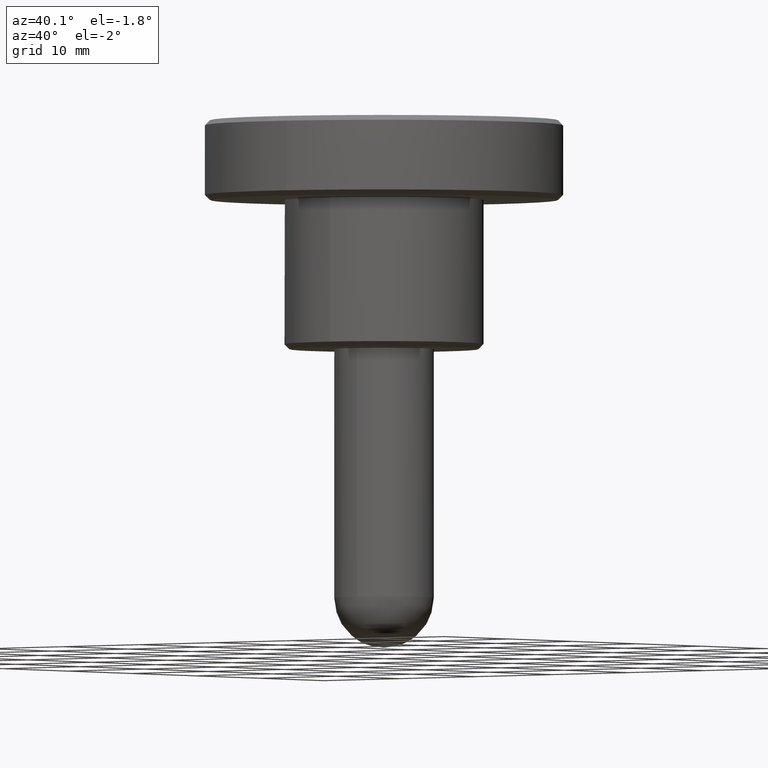
[diagram: clean part render]
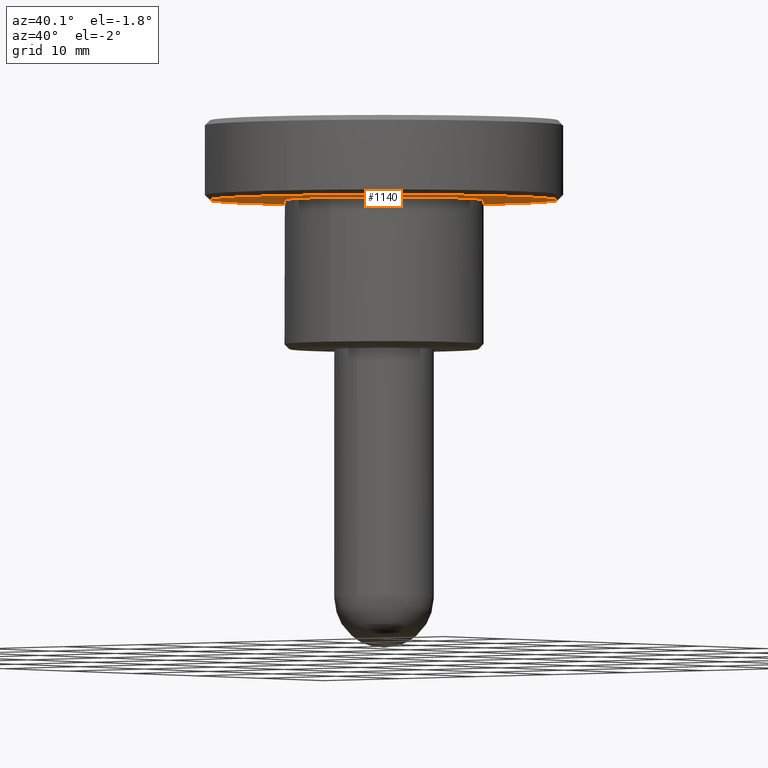
[diagram: same view with one face highlighted and labeled with its STEP entity id]
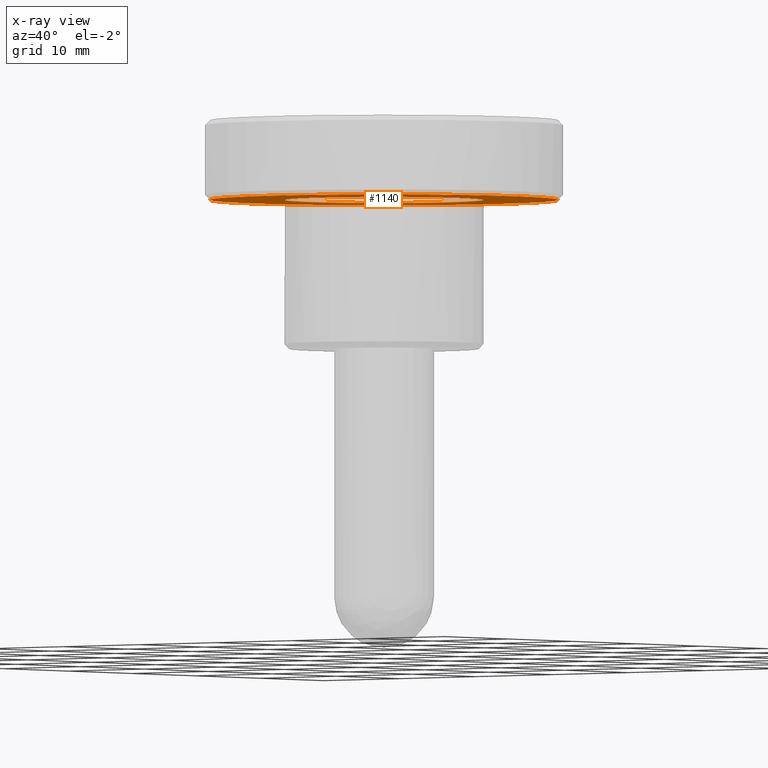
[diagram: x-ray of the same camera — body ghosted, the highlighted face saturated]
A machine part, auxiliary view. The second image highlights one B-rep face of the part: STEP entity #1140.
The next image is the same camera in x-ray: the body ghosted, the highlighted face saturated — about 26% of this face is hidden behind the body in this view.
In plain terms, the highlighted face is a freeform B-spline surface patch.
Its self-contained STEP definition (entity closure, byte-faithful):
#286=CARTESIAN_POINT('',(17.500000000000000,0.0,15.0));
#287=VERTEX_POINT('',#286);
#288=CARTESIAN_POINT('',(14.330156972434990,-10.044730018541330,15.000000000000361));
#289=VERTEX_POINT('',#288);
#290=CARTESIAN_POINT('',(17.500000000000000,0.0,15.0));
#291=CARTESIAN_POINT('',(17.500000000000004,-5.522523042435791,14.999999999999993));
#292=CARTESIAN_POINT('',(14.330156972434999,-10.044730018541332,15.000000000000369));
#300=(BOUNDED_CURVE()B_SPLINE_CURVE(2,(#290,#291,#292),.UNSPECIFIED.,.F.,.U.)B_SPLINE_CURVE_WITH_KNOTS((3,3),(0.0,0.098673726203020),.UNSPECIFIED.)CURVE()GEOMETRIC_REPRESENTATION_ITEM()RATIONAL_B_SPLINE_CURVE((1.0,0.884396538880320,0.860049271925799))REPRESENTATION_ITEM(''));
#301=EDGE_CURVE('',#287,#289,#300,.T.);
#303=CARTESIAN_POINT('',(-17.500000000000000,0.0,15.0));
#304=VERTEX_POINT('',#303);
#305=CARTESIAN_POINT('',(-17.500000000000000,0.0,15.0));
#306=CARTESIAN_POINT('',(-17.499999999999996,17.499999999999996,14.999999999999995));
#307=CARTESIAN_POINT('',(0.0,17.500000000000000,15.0));
#308=CARTESIAN_POINT('',(17.499999999999996,17.499999999999996,14.999999999999995));
#309=CARTESIAN_POINT('',(17.500000000000000,0.0,15.0));
#317=(BOUNDED_CURVE()B_SPLINE_CURVE(2,(#305,#306,#307,#308,#309),.UNSPECIFIED.,.F.,.U.)B_SPLINE_CURVE_WITH_KNOTS((3,2,3),(0.500000000000000,0.750000000000000,1.0),.UNSPECIFIED.)CURVE()GEOMETRIC_REPRESENTATION_ITEM()RATIONAL_B_SPLINE_CURVE((1.0,0.707106781186548,1.0,0.707106781186548,1.0))REPRESENTATION_ITEM(''));
#318=EDGE_CURVE('',#304,#287,#317,.T.);
#320=CARTESIAN_POINT('',(0.152714371277728,-17.499333653630149,15.000000000007640));
#321=VERTEX_POINT('',#320);
#322=CARTESIAN_POINT('',(0.152714371277728,-17.499333653630146,15.000000000007640));
#323=CARTESIAN_POINT('',(0.076358639418399,-17.500000000000004,15.000000000000004));
#324=CARTESIAN_POINT('',(0.0,-17.500000000000000,15.0));
#325=CARTESIAN_POINT('',(-17.499999999999996,-17.499999999999996,14.999999999999995));
#326=CARTESIAN_POINT('',(-17.500000000000000,0.0,15.0));
#334=(BOUNDED_CURVE()B_SPLINE_CURVE(2,(#322,#323,#324,#325,#326),.UNSPECIFIED.,.F.,.U.)B_SPLINE_CURVE_WITH_KNOTS((3,2,3),(0.248460105663883,0.250000000000000,0.500000000000000),.UNSPECIFIED.)CURVE()GEOMETRIC_REPRESENTATION_ITEM()RATIONAL_B_SPLINE_CURVE((0.996414028097791,0.998195901565048,1.0,0.707106781186548,1.0))REPRESENTATION_ITEM(''));
#335=EDGE_CURVE('',#321,#304,#334,.T.);
#430=CARTESIAN_POINT('',(14.330156972434999,-10.044730018541332,15.000000000000369));
#431=CARTESIAN_POINT('',(9.159947341185077,-17.420728722275783,15.000000000000002));
#432=CARTESIAN_POINT('',(0.152714371277728,-17.499333653630153,15.000000000007638));
#440=(BOUNDED_CURVE()B_SPLINE_CURVE(2,(#430,#431,#432),.UNSPECIFIED.,.F.,.U.)B_SPLINE_CURVE_WITH_KNOTS((3,3),(0.098673726203020,0.248460105663883),.UNSPECIFIED.)CURVE()GEOMETRIC_REPRESENTATION_ITEM()RATIONAL_B_SPLINE_CURVE((0.860049271925799,0.823090203821069,0.996414028097791))REPRESENTATION_ITEM(''));
#441=EDGE_CURVE('',#289,#321,#440,.T.);
#883=CARTESIAN_POINT('',(-0.087259972945896,9.999619277607147,15.0));
#884=VERTEX_POINT('',#883);
#890=CARTESIAN_POINT('',(10.0,0.0,15.0));
#891=VERTEX_POINT('',#890);
#892=CARTESIAN_POINT('',(-0.087259972945896,9.999619277607147,15.000000000000004));
#893=CARTESIAN_POINT('',(-0.043630817034404,9.999999999999998,15.000000000000005));
#894=CARTESIAN_POINT('',(0.0,10.0,15.0));
#895=CARTESIAN_POINT('',(10.000000000000002,10.000000000000002,14.999999999999995));
#896=CARTESIAN_POINT('',(10.0,0.0,15.0));
#904=(BOUNDED_CURVE()B_SPLINE_CURVE(2,(#892,#893,#894,#895,#896),.UNSPECIFIED.,.F.,.U.)B_SPLINE_CURVE_WITH_KNOTS((3,2,3),(0.248460200469343,0.250000000000000,0.500000000000000),.UNSPECIFIED.)CURVE()GEOMETRIC_REPRESENTATION_ITEM()RATIONAL_B_SPLINE_CURVE((0.996414247504272,0.998196012636554,1.0,0.707106781186548,1.0))REPRESENTATION_ITEM(''));
#905=EDGE_CURVE('',#884,#891,#904,.T.);
#907=CARTESIAN_POINT('',(1.241270529552836,-9.922663325557917,15.0));
#908=VERTEX_POINT('',#907);
#909=CARTESIAN_POINT('',(10.0,0.0,15.0));
#910=CARTESIAN_POINT('',(10.0,-8.826994510518793,15.000000000000005));
#911=CARTESIAN_POINT('',(1.241270529552836,-9.922663325557917,14.999999999999996));
#919=(BOUNDED_CURVE()B_SPLINE_CURVE(2,(#909,#910,#911),.UNSPECIFIED.,.F.,.U.)B_SPLINE_CURVE_WITH_KNOTS((3,3),(0.500000000000000,0.728526232342860),.UNSPECIFIED.)CURVE()GEOMETRIC_REPRESENTATION_ITEM()RATIONAL_B_SPLINE_CURVE((1.0,0.732264864903156,0.954005743322218))REPRESENTATION_ITEM(''));
#920=EDGE_CURVE('',#891,#908,#919,.T.);
#955=CARTESIAN_POINT('',(-10.0,0.0,15.0));
#956=VERTEX_POINT('',#955);
#957=CARTESIAN_POINT('',(1.241270529552836,-9.922663325557917,14.999999999999996));
#958=CARTESIAN_POINT('',(0.623044474159611,-10.0,15.000000000000004));
#959=CARTESIAN_POINT('',(0.0,-10.0,15.0));
#960=CARTESIAN_POINT('',(-10.000000000000002,-10.000000000000002,14.999999999999995));
#961=CARTESIAN_POINT('',(-10.0,0.0,15.0));
#969=(BOUNDED_CURVE()B_SPLINE_CURVE(2,(#957,#958,#959,#960,#961),.UNSPECIFIED.,.F.,.U.)B_SPLINE_CURVE_WITH_KNOTS((3,2,3),(0.728526232342860,0.750000000000000,1.0),.UNSPECIFIED.)CURVE()GEOMETRIC_REPRESENTATION_ITEM()RATIONAL_B_SPLINE_CURVE((0.954005743322218,0.974841916283392,1.0,0.707106781186548,1.0))REPRESENTATION_ITEM(''));
#970=EDGE_CURVE('',#908,#956,#969,.T.);
#972=CARTESIAN_POINT('',(-10.0,0.0,15.0));
#973=CARTESIAN_POINT('',(-9.999999999999998,9.913117441631954,15.000000000000002));
#974=CARTESIAN_POINT('',(-0.087259972945896,9.999619277607147,15.000000000000004));
#982=(BOUNDED_CURVE()B_SPLINE_CURVE(2,(#972,#973,#974),.UNSPECIFIED.,.F.,.U.)B_SPLINE_CURVE_WITH_KNOTS((3,3),(0.0,0.248460200469343),.UNSPECIFIED.)CURVE()GEOMETRIC_REPRESENTATION_ITEM()RATIONAL_B_SPLINE_CURVE((1.0,0.708910768549994,0.996414247504272))REPRESENTATION_ITEM(''));
#983=EDGE_CURVE('',#956,#884,#982,.T.);
#1123=CARTESIAN_POINT('',(-19.248249932163208,-19.247551095767310,15.0));
#1124=CARTESIAN_POINT('',(19.248250870936360,-19.247551095767310,15.0));
#1125=CARTESIAN_POINT('',(-19.248249932163208,19.248217624707511,15.0));
#1126=CARTESIAN_POINT('',(19.248250870936360,19.248217624707511,15.0));
#1127=B_SPLINE_SURFACE_WITH_KNOTS('',1,1,((#1123,#1125),(#1124,#1126)),.UNSPECIFIED.,.F.,.F.,.U.,(2,2),(2,2),(0.0,38.496500803099579),(0.0,38.495768720474807),.UNSPECIFIED.);
#1128=ORIENTED_EDGE('',*,*,#301,.T.);
#1129=ORIENTED_EDGE('',*,*,#441,.T.);
#1130=ORIENTED_EDGE('',*,*,#335,.T.);
#1131=ORIENTED_EDGE('',*,*,#318,.T.);
#1132=EDGE_LOOP('',(#1128,#1129,#1130,#1131));
#1133=FACE_OUTER_BOUND('',#1132,.T.);
#1134=ORIENTED_EDGE('',*,*,#983,.F.);
#1135=ORIENTED_EDGE('',*,*,#970,.F.);
#1136=ORIENTED_EDGE('',*,*,#920,.F.);
#1137=ORIENTED_EDGE('',*,*,#905,.F.);
#1138=EDGE_LOOP('',(#1134,#1135,#1136,#1137));
#1139=FACE_BOUND('',#1138,.T.);
#1140=ADVANCED_FACE('',(#1133,#1139),#1127,.F.);